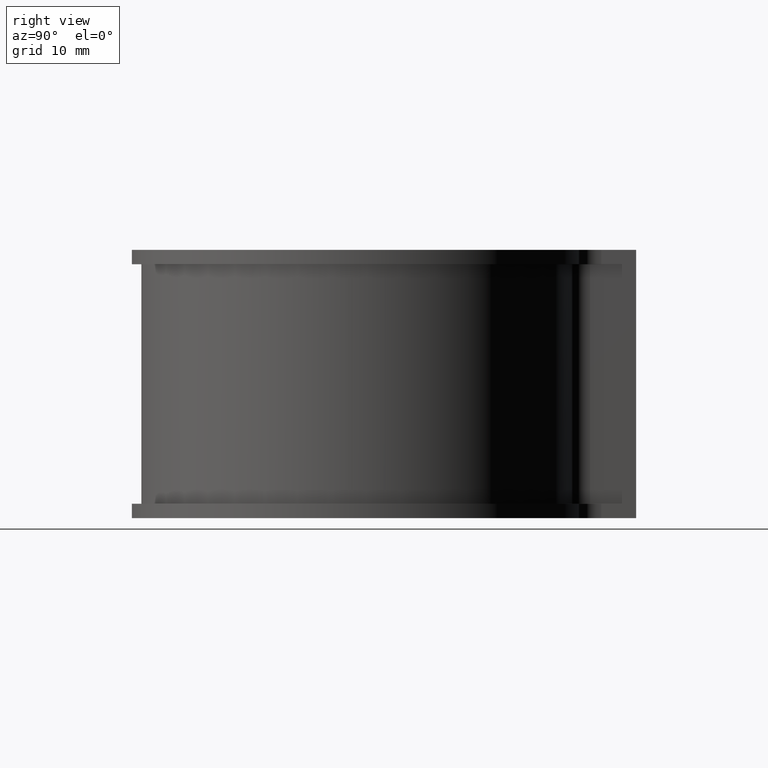
[diagram: clean part render]
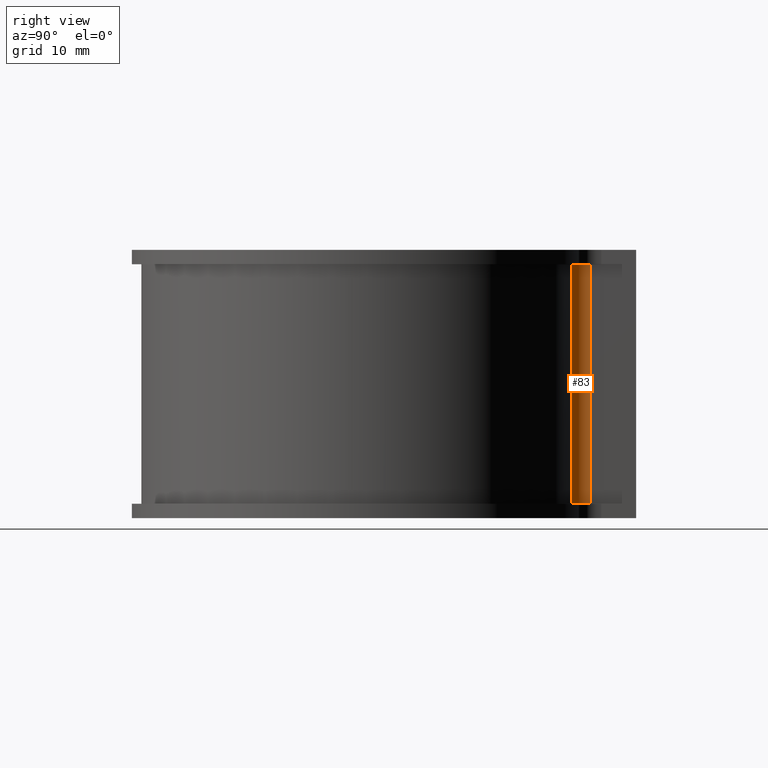
[diagram: same view with one face highlighted and labeled with its STEP entity id]
A machine part, right view. The second image highlights one B-rep face of the part: STEP entity #83.
In plain terms, the highlighted cylindrical surface (edge-blend (fillet) strip) has radius 2 mm, axis along (0, 0, -1).
Its self-contained STEP definition (entity closure, byte-faithful):
#83 = ADVANCED_FACE( '', ( #118 ), #119, .F. );
#118 = FACE_OUTER_BOUND( '', #170, .T. );
#119 = CYLINDRICAL_SURFACE( '', #171, 2.00000000000000 );
#170 = EDGE_LOOP( '', ( #282, #283, #284, #285 ) );
#171 = AXIS2_PLACEMENT_3D( '', #286, #287, #288 );
#282 = ORIENTED_EDGE( '', *, *, #463, .F. );
#283 = ORIENTED_EDGE( '', *, *, #466, .F. );
#284 = ORIENTED_EDGE( '', *, *, #446, .F. );
#285 = ORIENTED_EDGE( '', *, *, #468, .F. );
#286 = CARTESIAN_POINT( '', ( 6.50000000000001, 23.9848389613106, -25.0000000000000 ) );
#287 = DIRECTION( '', ( 0.000000000000000, 0.000000000000000, -1.00000000000000 ) );
#288 = DIRECTION( '', ( 1.00000000000000, 0.000000000000000, 0.000000000000000 ) );
#446 = EDGE_CURVE( '', #533, #535, #536, .F. );
#463 = EDGE_CURVE( '', #566, #549, #568, .T. );
#466 = EDGE_CURVE( '', #535, #566, #571, .T. );
#468 = EDGE_CURVE( '', #549, #533, #573, .T. );
#533 = VERTEX_POINT( '', #669 );
#535 = VERTEX_POINT( '', #671 );
#536 = CIRCLE( '', #672, 2.00000000000000 );
#549 = VERTEX_POINT( '', #688 );
#566 = VERTEX_POINT( '', #709 );
#568 = CIRCLE( '', #712, 2.00000000000000 );
#571 = LINE( '', #717, #718 );
#573 = LINE( '', #721, #722 );
#669 = CARTESIAN_POINT( '', ( 5.97686116700202, 22.0544696284083, -1.02634164867540E-045 ) );
#671 = CARTESIAN_POINT( '', ( 4.50000000000000, 23.9848389613106, 0.000000000000000 ) );
#672 = AXIS2_PLACEMENT_3D( '', #810, #811, #812 );
#688 = CARTESIAN_POINT( '', ( 5.97686116700202, 22.0544696284083, -25.0000000000000 ) );
#709 = CARTESIAN_POINT( '', ( 4.50000000000000, 23.9848389613106, -25.0000000000000 ) );
#712 = AXIS2_PLACEMENT_3D( '', #845, #846, #847 );
#717 = CARTESIAN_POINT( '', ( 4.50000000000000, 23.9848389613106, -25.0000000000000 ) );
#718 = VECTOR( '', #850, 1000.00000000000 );
#721 = CARTESIAN_POINT( '', ( 5.97686116700202, 22.0544696284083, -25.0000000000000 ) );
#722 = VECTOR( '', #852, 1000.00000000000 );
#810 = CARTESIAN_POINT( '', ( 6.50000000000001, 23.9848389613106, -3.46944695195361E-015 ) );
#811 = DIRECTION( '', ( 0.000000000000000, 0.000000000000000, 1.00000000000000 ) );
#812 = DIRECTION( '', ( 1.00000000000000, 0.000000000000000, 0.000000000000000 ) );
#845 = CARTESIAN_POINT( '', ( 6.50000000000001, 23.9848389613106, -25.0000000000000 ) );
#846 = DIRECTION( '', ( 0.000000000000000, 0.000000000000000, 1.00000000000000 ) );
#847 = DIRECTION( '', ( 1.00000000000000, 0.000000000000000, 0.000000000000000 ) );
#850 = DIRECTION( '', ( 0.000000000000000, 0.000000000000000, -1.00000000000000 ) );
#852 = DIRECTION( '', ( 0.000000000000000, 0.000000000000000, 1.00000000000000 ) );